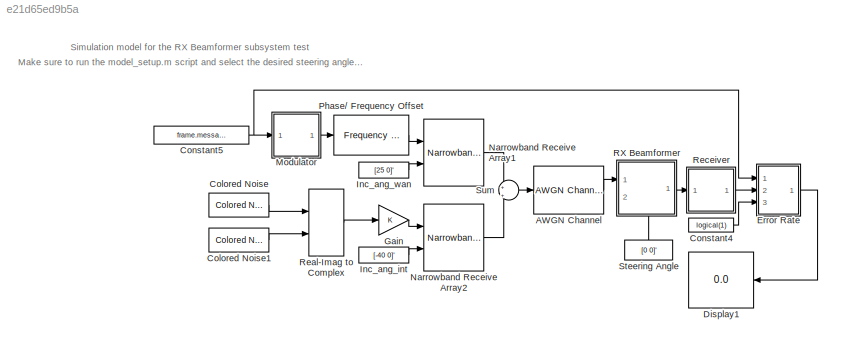
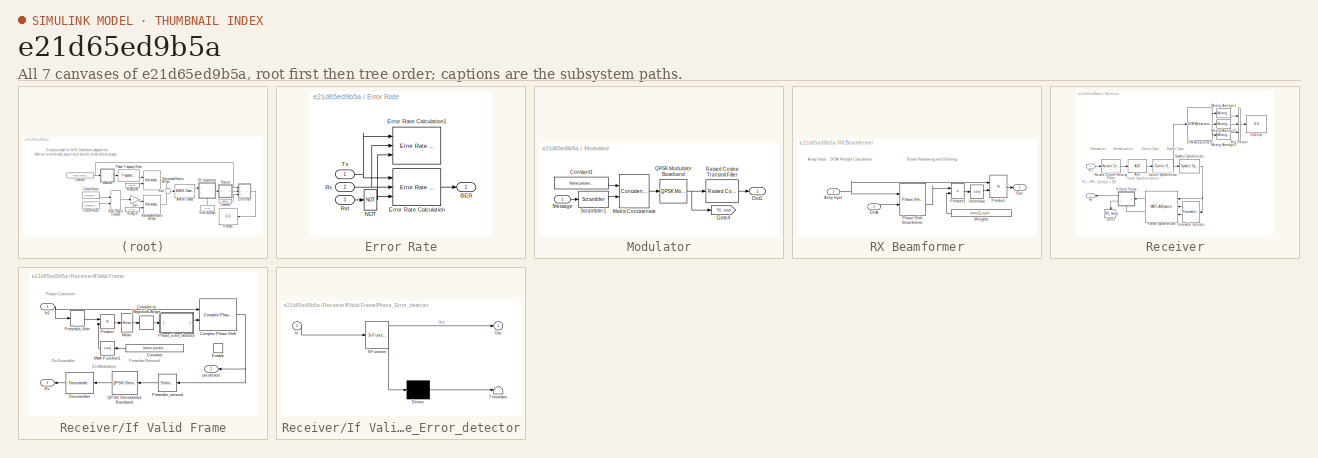
[diagram: thumbnail index - all 7 canvases of the model, root first then tree order]
MODEL slx_e21d65ed9b5a
KIND model
CONFIG AbsTol = auto
CONFIG EnableMultiTasking = off
CONFIG FixedStep = auto
CONFIG MaxStep = auto
CONFIG MinStep = auto
CONFIG RelTol = 1e-3
CONFIG SampleTimeConstraint = Unconstrained
CONFIG SolverName = VariableStepAuto
CONFIG StartTime = 0.0
CONFIG StopTime = 30
BLOCK [Reference] AWGN Channel  REF=commchan3/AWGN
Channel
  Ports = [1, 1]
  SourceBlock = commchan3/AWGN\nChannel
  SourceProductBaseCode = CM
  SourceType = AWGN Channel
  UserDataPersistent = on
BLOCK [Reference] Colored Noise  REF=dspsrcs4/Colored Noise
  Ports = [0, 1]
  SourceBlock = dspsrcs4/Colored Noise
  SourceProductBaseCode = DS
  SourceType = dsp.simulink.ColoredNoise
BLOCK [Reference] Colored Noise1  REF=dspsrcs4/Colored Noise
  Ports = [0, 1]
  SourceBlock = dspsrcs4/Colored Noise
  SourceProductBaseCode = DS
  SourceType = dsp.simulink.ColoredNoise
BLOCK [Constant] Constant4
  Value = logical(1)
BLOCK [Constant] Constant5
  SampleTime = system.step
  Value = frame.message.bits
BLOCK [Display] Display1
  Decimation = 1
  Ports = [1]
BLOCK [SubSystem] Error Rate
  Ports = [3, 1]
  RequestExecContextInheritance = off
BLOCK [Outport] Error Rate/BER
BLOCK [Reference] Error Rate/Error Rate Calculation  REF=commsink2/Error Rate
Calculation
  Ports = [3, 1]
  SourceBlock = commsink2/Error Rate\nCalculation
  SourceProductBaseCode = CM
  SourceType = Error Rate Calculation
BLOCK [Reference] Error Rate/Error Rate Calculation1  REF=commsink2/Error Rate
Calculation
  Ports = [3]
  SourceBlock = commsink2/Error Rate\nCalculation
  SourceProductBaseCode = CM
  SourceType = Error Rate Calculation
BLOCK [Logic] Error Rate/NOT
  AllPortsSameDT = off
  IconShape = distinctive
  Operator = NOT
  OutDataTypeStr = boolean
  Ports = [1, 1]
BLOCK [Inport] Error Rate/Rst
  NameLocation = left
  Port = 3
BLOCK [Inport] Error Rate/Rx
  NameLocation = left
  Port = 2
BLOCK [Inport] Error Rate/Tx
  NameLocation = left
BLOCK [Gain] Gain
BLOCK [Constant] Inc_ang_int
  Value = [-40 0]'
BLOCK [Constant] Inc_ang_wan
  Value = [25 0]'
BLOCK [SubSystem] Modulator
  Ports = [1, 1]
  RequestExecContextInheritance = off
BLOCK [Constant] Modulator/Constant1
  SampleTime = system.step
  Value = frame.preamble.bits
BLOCK [Goto] Modulator/Goto4
  GotoTag = TX_mod
  TagVisibility = global
BLOCK [Concatenate] Modulator/Matrix Concatenate
  Mode = Multidimensional array
  Ports = [2, 1]
BLOCK [Inport] Modulator/Message
BLOCK [Outport] Modulator/Out1
BLOCK [Reference] Modulator/QPSK Modulator Baseband  REF=commdigbbndpm3/QPSK
Modulator
Baseband
  Ports = [1, 1]
  SourceBlock = commdigbbndpm3/QPSK\nModulator\nBaseband
  SourceProductBaseCode = CM
  SourceType = QPSK Modulator Baseband
BLOCK [Reference] Modulator/Raised Cosine Transmit Filter  REF=commfilt2/Raised Cosine
Transmit Filter
  Ports = [1, 1]
  SourceBlock = commfilt2/Raised Cosine\nTransmit Filter
  SourceProductBaseCode = CM
  SourceType = Raised Cosine Transmit Filter
BLOCK [Reference] Modulator/Scrambler1  REF=commsequence2/Scrambler
  Ports = [1, 1]
  SourceBlock = commsequence2/Scrambler
  SourceProductBaseCode = CM
  SourceType = Scrambler
BLOCK [Reference] Narrowband Receive Array1  REF=phasedtxrxlib/Narrowband Receive Array
  Ports = [2, 1]
  SourceBlock = phasedtxrxlib/Narrowband Receive Array
  SourceProductBaseCode = AR
  SourceType = phased.Collector
BLOCK [Reference] Narrowband Receive Array2  REF=phasedtxrxlib/Narrowband Receive Array
  Ports = [2, 1]
  SourceBlock = phasedtxrxlib/Narrowband Receive Array
  SourceProductBaseCode = AR
  SourceType = phased.Collector
BLOCK [Reference] Phase// Frequency Offset  REF=commrflib2/Phase//
Frequency
Offset
  Ports = [1, 1]
  SourceBlock = commrflib2/Phase//\nFrequency\nOffset
  SourceProductBaseCode = CM
  SourceType = Phase/Frequency Offset
BLOCK [SubSystem] RX Beamformer
  NameLocation = top
  PortSchema = {"entries":[{"content":{"sides":[{"content":{"connectorIds":["In1"]},"type":"ConnectorPlacement.EquallySpacedRectSide","uuid":"da6b99b9-07c1-40ec-94f6-5f8421c86696"},{"content":{"connectorIds":["Out1"],"side":"RIGHT"},"type":"ConnectorPlacement.EquallySpacedRectSide","uuid":"d1696111-4bb2-4715-9875-a9a0a5fdf0a8"},{"content":{"connectorIds":[],"side":"TOP"},"type":"ConnectorPlacement.EquallySpacedR...<+391ch>
  Ports = [2, 1]
  RequestExecContextInheritance = off
BLOCK [Inport] RX Beamformer/Array Input
  NameLocation = top
BLOCK [Inport] RX Beamformer/DOA
  NameLocation = top
  Port = 2
BLOCK [Math] RX Beamformer/Hermitian
  Operator = conj
  Ports = [1, 1]
BLOCK [Outport] RX Beamformer/Out
BLOCK [Reference] RX Beamformer/Phase Shift Beamformer  REF=phasedbflib/Phase Shift Beamformer
  Ports = [2, 2]
  SourceBlock = phasedbflib/Phase Shift Beamformer
  SourceProductBaseCode = AR
  SourceType = phased.PhaseShiftBeamformer
BLOCK [Product] RX Beamformer/Product
  Multiplication = Matrix(*)
  Ports = [2, 1]
BLOCK [Product] RX Beamformer/Product1
  Ports = [2, 1]
BLOCK [Constant] RX Beamformer/Weights
  Value = ones(1,system.n_antennas)
BLOCK [RealImagToComplex] Real-Imag to Complex
  Ports = [2, 1]
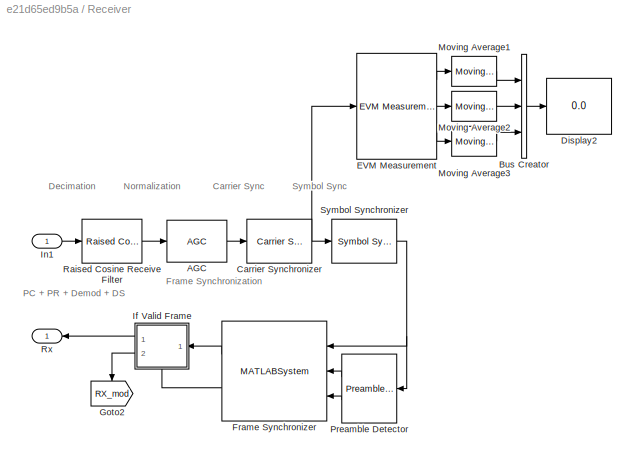
BLOCK [SubSystem] Receiver
  NameLocation = top
  Ports = [1, 1]
  RequestExecContextInheritance = off
BLOCK [Reference] Receiver/AGC  REF=commrfcorlib/AGC
  Ports = [1, 1]
  SourceBlock = commrfcorlib/AGC
  SourceProductBaseCode = CM
  SourceType = AGC
BLOCK [BusCreator] Receiver/Bus Creator
  DisplayOption = bar
  InheritFromInputs = on
  Inputs = 3
  Ports = [3, 1]
BLOCK [Reference] Receiver/Carrier Synchronizer  REF=commsync2/Carrier Synchronizer
  Ports = [1, 1]
  SourceBlock = commsync2/Carrier Synchronizer
  SourceProductBaseCode = CM
  SourceType = Carrier Synchronizer
BLOCK [Display] Receiver/Display2
  Decimation = 1
  Ports = [1]
BLOCK [Reference] Receiver/EVM Measurement  REF=commutil2/EVM Measurement
  Ports = [1, 3]
  SourceBlock = commutil2/EVM Measurement
  SourceProductBaseCode = CM
  SourceType = EVM Measurement
BLOCK [MATLABSystem] Receiver/Frame Synchronizer
  Input = Symbol
  MaskDisplay = disp(['Frame' char(10) 'Synchronizer']);\nport_label('input',1,'u');\nport_label('input',2,'idx');\nport_label('input',3,'dtMt');\nport_label('output',1,'Frame');\nport_label('output',2,'Valid');
  MaskType = comm.internal.examples.FrameSynchronizer
  OutputFrameLength = system.rx.fs.frame_length
  Ports = [3, 2]
  PreambleLength = system.rx.fs.preamble_length
  SimulateUsing = Code generation
  System = comm.internal.examples.FrameSynchronizer
BLOCK [Goto] Receiver/Goto2
  GotoTag = RX_mod
  NameLocation = left
  TagVisibility = global
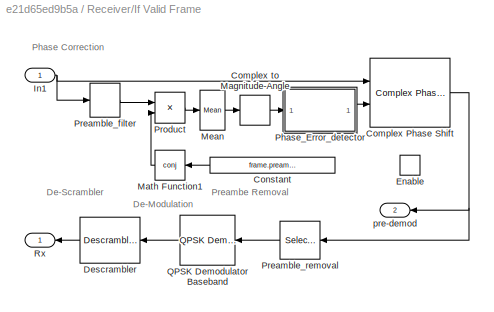
BLOCK [SubSystem] Receiver/If Valid Frame
  NameLocation = top
  Ports = [1, 2, 1]
  RequestExecContextInheritance = off
  TreatAsAtomicUnit = on
BLOCK [Reference] Receiver/If Valid Frame/Complex Phase Shift  REF=commutil2/Complex Phase
Shift
  Ports = [2, 1]
  SourceBlock = commutil2/Complex Phase\nShift
  SourceProductBaseCode = CM
  SourceType = Complex Phase Shift
BLOCK [ComplexToMagnitudeAngle] Receiver/If Valid Frame/Complex to Magnitude-Angle
  Output = Angle
  Ports = [1, 1]
BLOCK [Constant] Receiver/If Valid Frame/Constant
  Value = frame.preamble.symbols
BLOCK [Reference] Receiver/If Valid Frame/Descrambler  REF=commsequence2/Descrambler
  Ports = [1, 1]
  SourceBlock = commsequence2/Descrambler
  SourceProductBaseCode = CM
  SourceType = Descrambler
BLOCK [EnablePort] Receiver/If Valid Frame/Enable
  Ports = []
BLOCK [Inport] Receiver/If Valid Frame/In1
BLOCK [Math] Receiver/If Valid Frame/Math Function1
  Operator = conj
  Ports = [1, 1]
  SignedPower = on
BLOCK [Reference] Receiver/If Valid Frame/Mean  REF=dspstat3/Mean
  Ports = [1, 1]
  SourceBlock = dspstat3/Mean
  SourceProductBaseCode = DS
  SourceType = Mean
  UserDataPersistent = on
BLOCK [SubSystem] Receiver/If Valid Frame/Phase_Error_detector
  ErrorFcn = Stateflow.Translate.translate
  PermitHierarchicalResolution = ExplicitOnly
  Ports = [1, 1]
  RequestExecContextInheritance = off
  SFBlockType = MATLAB Function
  TreatAsAtomicUnit = on
BLOCK [Demux] Receiver/If Valid Frame/Phase_Error_detector/ Demux 
  Outputs = 1
  Ports = [1, 1]
BLOCK [S-Function] Receiver/If Valid Frame/Phase_Error_detector/ SFunction 
  EnableBusSupport = off
  FunctionName = sf_sfun
  PortCounts = [1 2]
  Ports = [1, 2]
  SFcnIsStateOwnerBlock = off
  SFunctionDeploymentMode = off
  Tag = Stateflow S-Function 2
BLOCK [Terminator] Receiver/If Valid Frame/Phase_Error_detector/ Terminator 
BLOCK [Inport] Receiver/If Valid Frame/Phase_Error_detector/In
BLOCK [Outport] Receiver/If Valid Frame/Phase_Error_detector/Out
  VectorParamsAs1DForOutWhenUnconnected = off
BLOCK [Selector] Receiver/If Valid Frame/Preamble_filter
  IndexOptions = Index vector (dialog)
  Indices = 1:length(frame.preamble.symbols)
  InputPortWidth = length(frame.symbols)
  OutputSizes = 1
  Ports = [1, 1]
BLOCK [Selector] Receiver/If Valid Frame/Preamble_removal
  IndexOptions = Index vector (dialog)
  Indices = (length(frame.preamble.symbols)+1):length(frame.symbols)
  InputPortWidth = length(frame.symbols)
  OutputSizes = 1
  Ports = [1, 1]
BLOCK [Product] Receiver/If Valid Frame/Product
  Ports = [2, 1]
  RndMeth = Zero
BLOCK [Reference] Receiver/If Valid Frame/QPSK Demodulator Baseband  REF=commdigbbndpm3/QPSK
Demodulator
Baseband
  Ports = [1, 1]
  SourceBlock = commdigbbndpm3/QPSK\nDemodulator\nBaseband
  SourceProductBaseCode = CM
  SourceType = QPSK Demodulator Baseband
BLOCK [Outport] Receiver/If Valid Frame/Rx
BLOCK [Outport] Receiver/If Valid Frame/pre-demod
  Port = 2
BLOCK [Inport] Receiver/In1
BLOCK [Reference] Receiver/Moving Average1  REF=dspstat3/Moving
Average
  Ports = [1, 1]
  SourceBlock = dspstat3/Moving\nAverage
  SourceProductBaseCode = DS
  SourceType = dsp.simulink.MovingAverage
BLOCK [Reference] Receiver/Moving Average2  REF=dspstat3/Moving
Average
  Ports = [1, 1]
  SourceBlock = dspstat3/Moving\nAverage
  SourceProductBaseCode = DS
  SourceType = dsp.simulink.MovingAverage
BLOCK [Reference] Receiver/Moving Average3  REF=dspstat3/Moving
Average
  Ports = [1, 1]
  SourceBlock = dspstat3/Moving\nAverage
  SourceProductBaseCode = DS
  SourceType = dsp.simulink.MovingAverage
BLOCK [Reference] Receiver/Preamble Detector  REF=commsync2/Preamble Detector
  Ports = [1, 2]
  SourceBlock = commsync2/Preamble Detector
  SourceProductBaseCode = CM
  SourceType = Preamble Detector
BLOCK [Reference] Receiver/Raised Cosine Receive Filter  REF=commfilt2/Raised Cosine
Receive Filter
  Ports = [1, 1]
  SourceBlock = commfilt2/Raised Cosine\nReceive Filter
  SourceProductBaseCode = CM
  SourceType = Raised Cosine Receive Filter
  UserDataPersistent = on
BLOCK [Outport] Receiver/Rx
  NameLocation = top
BLOCK [Reference] Receiver/Symbol Synchronizer  REF=commsync2/Symbol Synchronizer
  Ports = [1, 1]
  SourceBlock = commsync2/Symbol Synchronizer
  SourceProductBaseCode = CM
  SourceType = Symbol Synchronizer
BLOCK [Constant] Steering Angle
  SampleTime = system.step
  Value = [0 0]'
BLOCK [Sum] Sum
  Inputs = +|+
  Ports = [2, 1]
ANNOTATION (root): Make sure to run the model_setup.m script and select the desired steering angle, phase offset and incidence angles in the blocks
ANNOTATION (root): Simulation model for the RX Beamformer subsystem test
ANNOTATION RX Beamformer: Array Input
ANNOTATION RX Beamformer: Beam Narrowing and Steering
ANNOTATION RX Beamformer: DOA Weight Calculation
ANNOTATION Receiver: Carrier Sync
ANNOTATION Receiver: Decimation
ANNOTATION Receiver: Frame Synchronization
ANNOTATION Receiver: Normalization
ANNOTATION Receiver: PC + PR + Demod + DS
ANNOTATION Receiver: Symbol Sync
ANNOTATION Receiver/If Valid Frame: De-Modulation
ANNOTATION Receiver/If Valid Frame: De-Scrambler
ANNOTATION Receiver/If Valid Frame: Phase Correction
ANNOTATION Receiver/If Valid Frame: Preambe Removal
LINE AWGN Channel:1 -> RX Beamformer:1
LINE Colored Noise1:1 -> Real-Imag to Complex:2
LINE Colored Noise:1 -> Real-Imag to Complex:1
LINE Constant4:1 -> Error Rate:3
NET Constant5:1 -> Error Rate:1, Modulator:1
LINE Error Rate/Error Rate Calculation:1 -> Error Rate/BER:1
NET Error Rate/NOT:1 -> Error Rate/Error Rate Calculation1:3, Error Rate/Error Rate Calculation:3
LINE Error Rate/Rst:1 -> Error Rate/NOT:1
NET Error Rate/Rx:1 -> Error Rate/Error Rate Calculation1:2, Error Rate/Error Rate Calculation:2
NET Error Rate/Tx:1 -> Error Rate/Error Rate Calculation1:1, Error Rate/Error Rate Calculation:1
LINE Error Rate:1 -> Display1:1
LINE Gain:1 -> Narrowband Receive Array2:1
LINE Inc_ang_int:1 -> Narrowband Receive Array2:2
LINE Inc_ang_wan:1 -> Narrowband Receive Array1:2
LINE Modulator/Constant1:1 -> Modulator/Matrix Concatenate:1
LINE Modulator/Matrix Concatenate:1 -> Modulator/QPSK Modulator Baseband:1
LINE Modulator/Message:1 -> Modulator/Scrambler1:1
NET Modulator/QPSK Modulator Baseband:1 -> Modulator/Goto4:1, Modulator/Raised Cosine Transmit Filter:1
LINE Modulator/Raised Cosine Transmit Filter:1 -> Modulator/Out1:1
LINE Modulator/Scrambler1:1 -> Modulator/Matrix Concatenate:2
LINE Modulator:1 -> Phase// Frequency Offset:1
LINE Narrowband Receive Array1:1 -> Sum:1
LINE Narrowband Receive Array2:1 -> Sum:2
LINE Phase// Frequency Offset:1 -> Narrowband Receive Array1:1
NET RX Beamformer/Array Input:1 -> RX Beamformer/Phase Shift Beamformer:1, RX Beamformer/Product:1
LINE RX Beamformer/DOA:1 -> RX Beamformer/Phase Shift Beamformer:2
LINE RX Beamformer/Hermitian:1 -> RX Beamformer/Product:2
LINE RX Beamformer/Phase Shift Beamformer:2 -> RX Beamformer/Product1:1
LINE RX Beamformer/Product1:1 -> RX Beamformer/Hermitian:1
LINE RX Beamformer/Product:1 -> RX Beamformer/Out:1
LINE RX Beamformer/Weights:1 -> RX Beamformer/Product1:2
LINE RX Beamformer:1 -> Receiver:1
LINE Real-Imag to Complex:1 -> Gain:1
LINE Receiver/AGC:1 -> Receiver/Carrier Synchronizer:1
LINE Receiver/Bus Creator:1 -> Receiver/Display2:1
NET Receiver/Carrier Synchronizer:1 -> Receiver/EVM Measurement:1, Receiver/Symbol Synchronizer:1
LINE Receiver/EVM Measurement:1 -> Receiver/Moving Average1:1
LINE Receiver/EVM Measurement:2 -> Receiver/Moving Average2:1
LINE Receiver/EVM Measurement:3 -> Receiver/Moving Average3:1
LINE Receiver/Frame Synchronizer:1 -> Receiver/If Valid Frame:1
LINE Receiver/Frame Synchronizer:2 -> Receiver/If Valid Frame:enable
NET Receiver/If Valid Frame/Complex Phase Shift:1 -> Receiver/If Valid Frame/Preamble_removal:1, Receiver/If Valid Frame/pre-demod:1
LINE Receiver/If Valid Frame/Complex to Magnitude-Angle:1 -> Receiver/If Valid Frame/Phase_Error_detector:1
LINE Receiver/If Valid Frame/Constant:1 -> Receiver/If Valid Frame/Math Function1:1
LINE Receiver/If Valid Frame/Descrambler:1 -> Receiver/If Valid Frame/Rx:1
NET Receiver/If Valid Frame/In1:1 -> Receiver/If Valid Frame/Complex Phase Shift:1, Receiver/If Valid Frame/Preamble_filter:1
LINE Receiver/If Valid Frame/Math Function1:1 -> Receiver/If Valid Frame/Product:2
LINE Receiver/If Valid Frame/Mean:1 -> Receiver/If Valid Frame/Complex to Magnitude-Angle:1
LINE Receiver/If Valid Frame/Phase_Error_detector:1 -> Receiver/If Valid Frame/Complex Phase Shift:2
LINE Receiver/If Valid Frame/Preamble_filter:1 -> Receiver/If Valid Frame/Product:1
LINE Receiver/If Valid Frame/Preamble_removal:1 -> Receiver/If Valid Frame/QPSK Demodulator Baseband:1
LINE Receiver/If Valid Frame/Product:1 -> Receiver/If Valid Frame/Mean:1
LINE Receiver/If Valid Frame/QPSK Demodulator Baseband:1 -> Receiver/If Valid Frame/Descrambler:1
LINE Receiver/If Valid Frame:1 -> Receiver/Rx:1
LINE Receiver/If Valid Frame:2 -> Receiver/Goto2:1
LINE Receiver/In1:1 -> Receiver/Raised Cosine Receive Filter:1
LINE Receiver/Moving Average1:1 -> Receiver/Bus Creator:1
LINE Receiver/Moving Average2:1 -> Receiver/Bus Creator:2
LINE Receiver/Moving Average3:1 -> Receiver/Bus Creator:3
LINE Receiver/Preamble Detector:1 -> Receiver/Frame Synchronizer:2
LINE Receiver/Preamble Detector:2 -> Receiver/Frame Synchronizer:3
LINE Receiver/Raised Cosine Receive Filter:1 -> Receiver/AGC:1
NET Receiver/Symbol Synchronizer:1 -> Receiver/Frame Synchronizer:1, Receiver/Preamble Detector:1
LINE Receiver:1 -> Error Rate:2
LINE Steering Angle:1 -> RX Beamformer:2
LINE Sum:1 -> AWGN Channel:1
note: NET lines group one-source signal fan-out (src -> all destinations, sorted); 1:1 wires keep LINE
CHART Receiver/If Valid Frame/Phase_Error_detector states=1 transitions=1
  STATE_LABEL 'eML_blk_kernel()'
  STATE_LABEL 'SCRIPT:\nfunction Out = phasedecision(In)\n% Map the estimated phase to one of -pi, -pi/2, 0, pi/2,  \n%#codegen\nOut = -round(In.*2./pi)./2.*pi;\n% The above processing is equivalent to the following processing using\n% if/else statements\n%\n% if In<pi/4 && In>-pi/4\n%     Out = 0;\n% elseif In>=pi/4 && In<pi*3/4\n%     Out = pi/2;\n% elseif In>=pi*3/4 || In<=-pi*3/4\n%     Out = -pi;\n% else\n%     Out = -pi/...<+11ch>'
CHART  states=0 transitions=0
